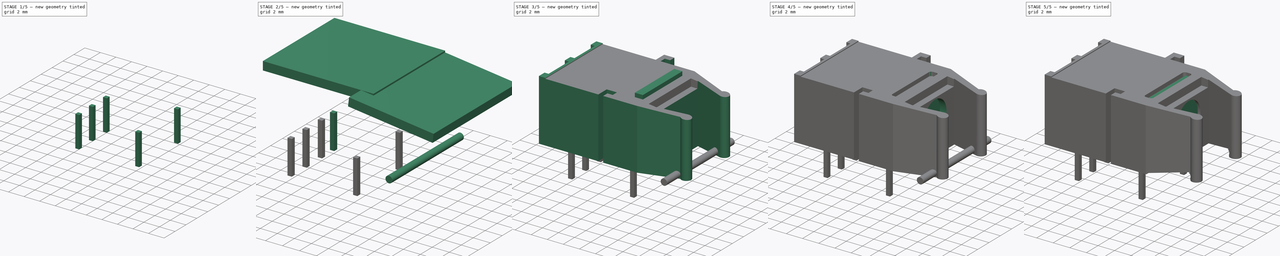
[diagram: build sequence overview — one tinted view per stage of 5, left to right]
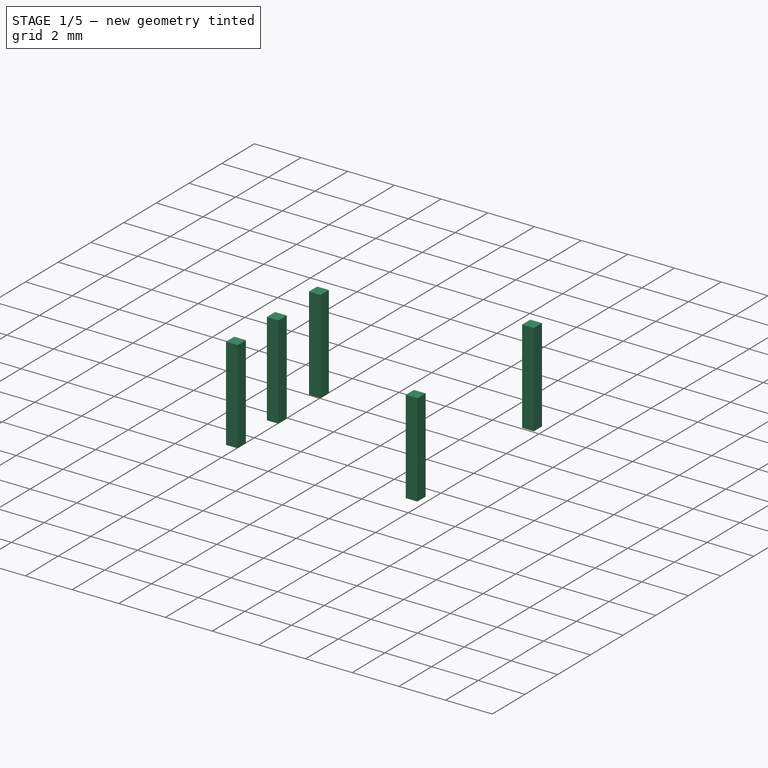
[diagram: stage 1 of 5 — iso view after this stage's code; geometry added in this stage tinted green]
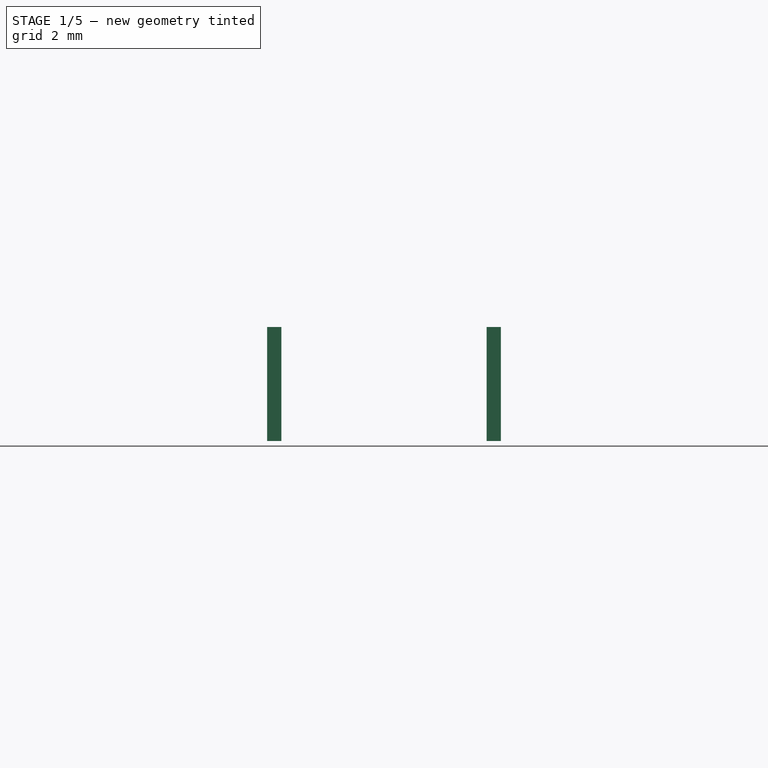
[diagram: stage 1 of 5 — front view after this stage's code; geometry added in this stage tinted green]
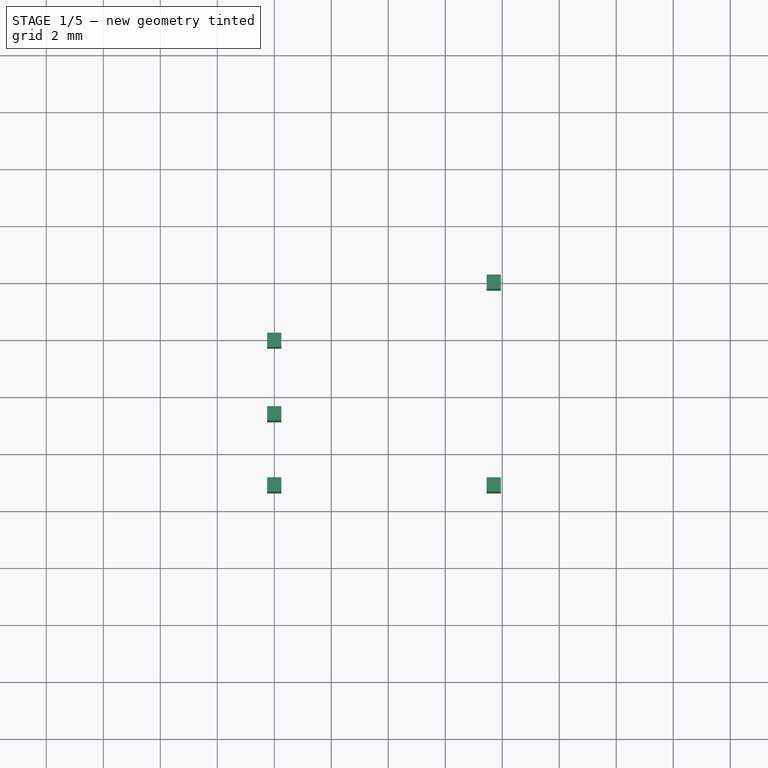
[diagram: stage 1 of 5 — top view after this stage's code; geometry added in this stage tinted green]
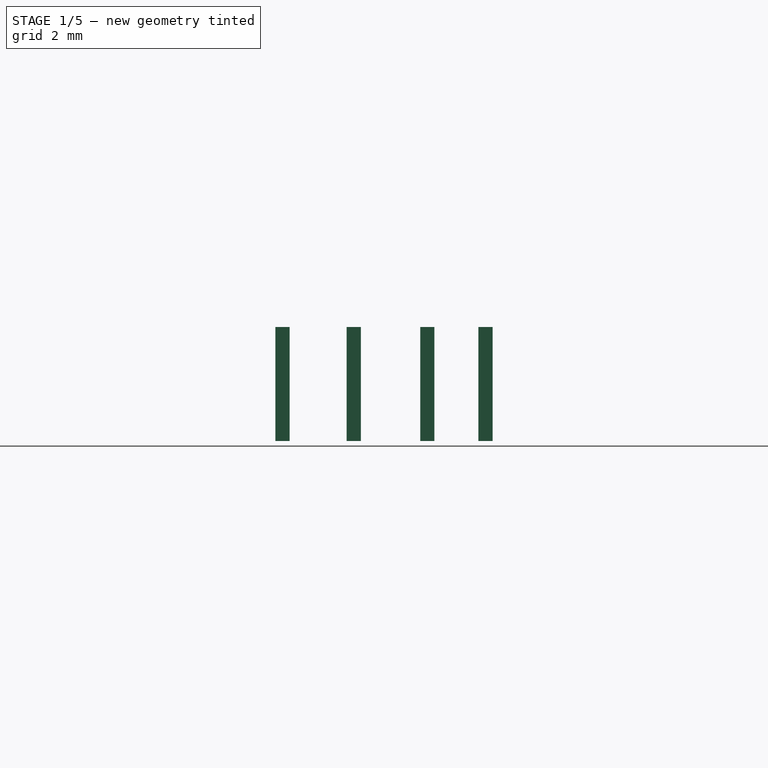
[diagram: stage 1 of 5 — right view after this stage's code; geometry added in this stage tinted green]
FCSTD DOCUMENT  (FreeCAD 0.17R11223 (Git))
Label: Broadcom_AFBR-16xxZ_Horizontal_11
License: All rights reserved
LicenseURL: http://en.wikipedia.org/wiki/All_rights_reserved
objects: Part::Box×11, Part::Cut×7, Part::Cylinder×4, Part::Fillet×2, Sketcher::SketchObject×1, PartDesign::Pad×1, PartDesign::Body×1
note: 28 computed .brp shape members not serialized (recipe doc carries the construction recipe); baked Part::Feature solids carry a one-line shape summary decoded from their .brp

FEATURE [Part::Box] Box006  label="Kub006"
  AttacherType = Attacher::AttachEngine3D
  Height = 4
  Length = 0.5
  Placement = pos=(-0.25,-2.29,-3.8) rot=(0,0,1;0rad)
  Width = 0.5
FEATURE [Part::Box] Box007  label="Kub007"
  AttacherType = Attacher::AttachEngine3D
  Height = 4
  Length = 0.5
  Placement = pos=(-0.25,-4.87,-3.8) rot=(0,0,1;0rad)
  Width = 0.5
FEATURE [Part::Box] Box008  label="Kub008"
  AttacherType = Attacher::AttachEngine3D
  Height = 4
  Length = 0.5
  Placement = pos=(-0.25,-7.37,-3.8) rot=(0,0,1;0rad)
  Width = 0.5
FEATURE [Part::Box] Box009  label="Kub009"
  AttacherType = Attacher::AttachEngine3D
  Height = 4
  Length = 0.5
  Placement = pos=(7.45,-0.25,-3.8) rot=(0,0,1;0rad)
  Width = 0.5
FEATURE [Part::Box] Box010  label="Kub010"
  AttacherType = Attacher::AttachEngine3D
  Height = 4
  Length = 0.5
  Placement = pos=(7.45,-7.37,-3.8) rot=(0,0,1;0rad)
  Width = 0.5
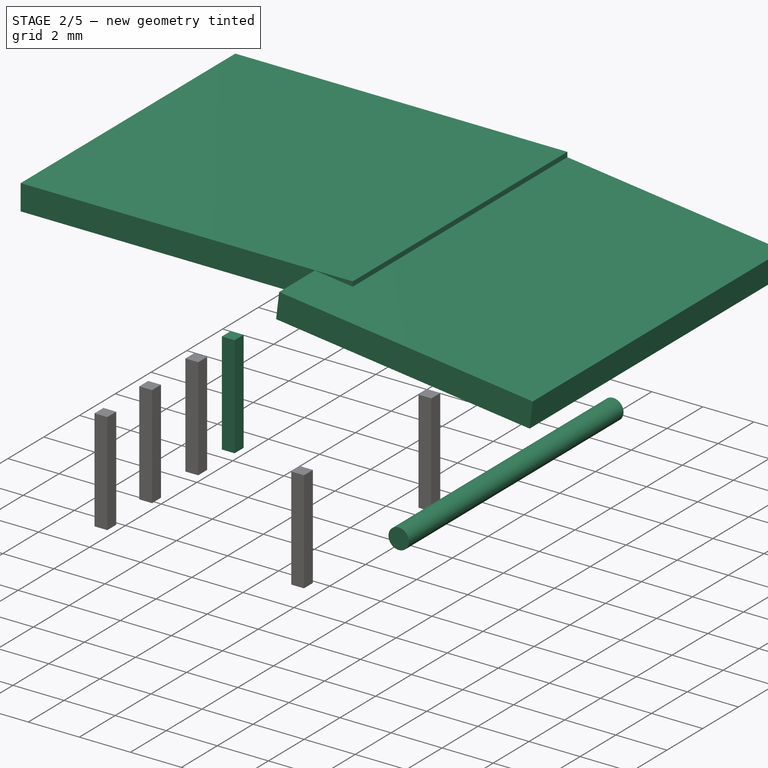
[diagram: stage 2 of 5 — iso view after this stage's code; geometry added in this stage tinted green]
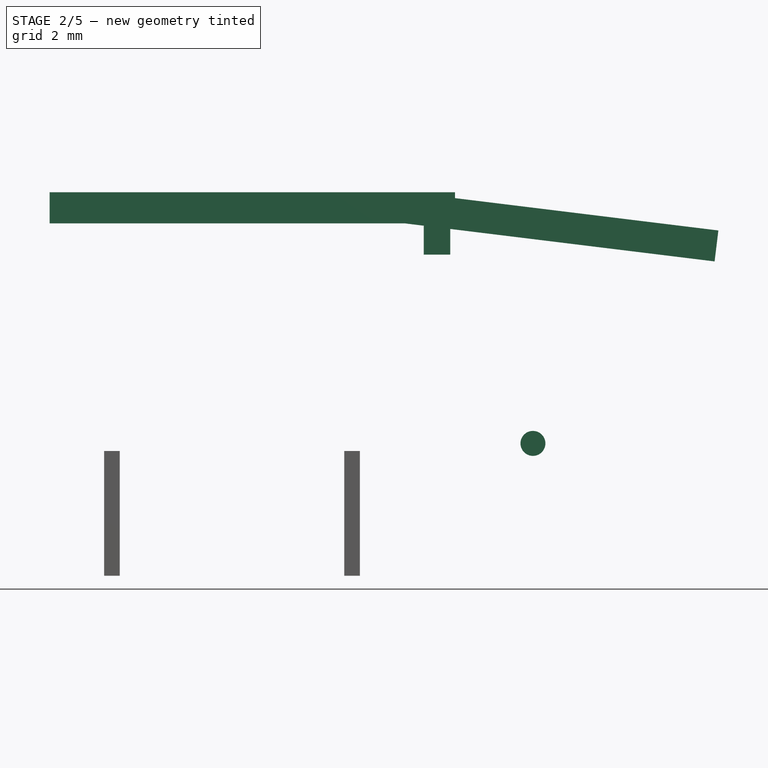
[diagram: stage 2 of 5 — front view after this stage's code; geometry added in this stage tinted green]
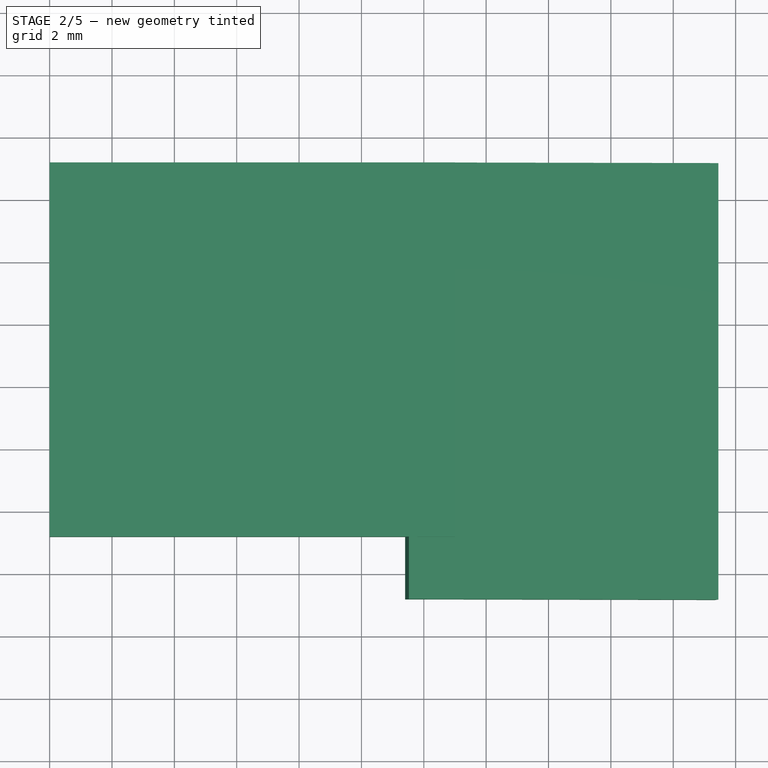
[diagram: stage 2 of 5 — top view after this stage's code; geometry added in this stage tinted green]
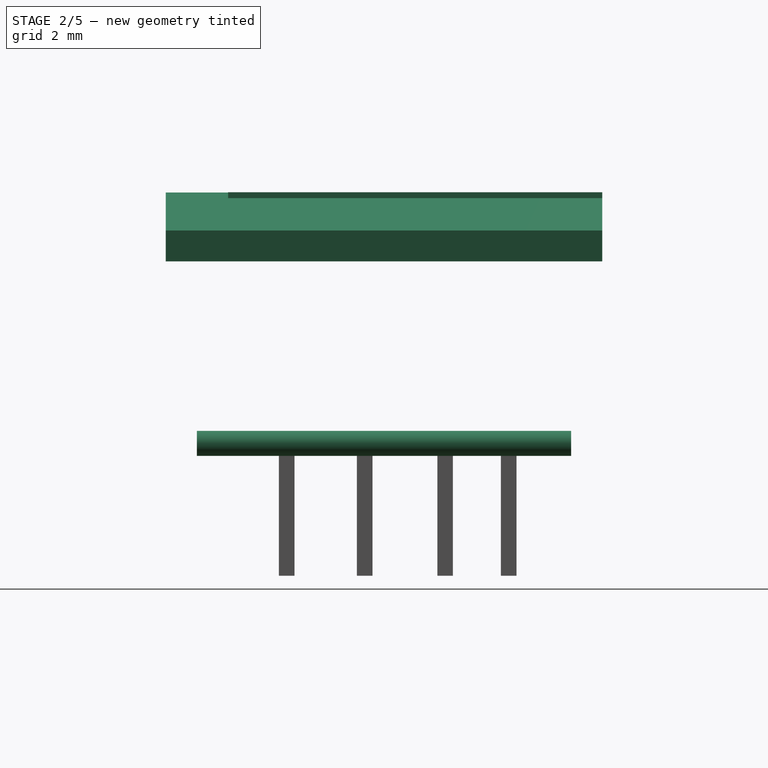
[diagram: stage 2 of 5 — right view after this stage's code; geometry added in this stage tinted green]
FEATURE [PartDesign::Body] Body
  Group = -> [Sketch,Pad]
  Origin = -> BodyOrigin
  Tip = -> Pad
FEATURE [Part::Box] Box  label="Kub"
  AttacherType = Attacher::AttachEngine3D
  Height = 1
  Length = 13
  Placement = pos=(-2,-9,7.5) rot=(0,0,1;0rad)
  Width = 12
FEATURE [Part::Box] Box001  label="Kub001"
  AttacherType = Attacher::AttachEngine3D
  Height = 1
  Length = 10
  Placement = pos=(9.4,-11,7.5) rot=(0,1,0;0.122173rad)
  Width = 14
FEATURE [Part::Box] Box002  label="Kub002"
  AttacherType = Attacher::AttachEngine3D
  Height = 1
  Length = 0.85
  Placement = pos=(10,-7.7,6.5) rot=(0,0,1;0rad)
  Width = 7.5
FEATURE [Part::Cylinder] Cylinder003
  Angle = 360
  AttacherType = Attacher::AttachEngine3D
  Height = 12
  Placement = pos=(13.5,2,0.445) rot=(1,0,0;1.5708rad)
  Radius = 0.4
FEATURE [Part::Box] Box005  label="Kub005"
  AttacherType = Attacher::AttachEngine3D
  Height = 4
  Length = 0.5
  Placement = pos=(-0.25,-0.25,-3.8) rot=(0,0,1;0rad)
  Width = 0.5
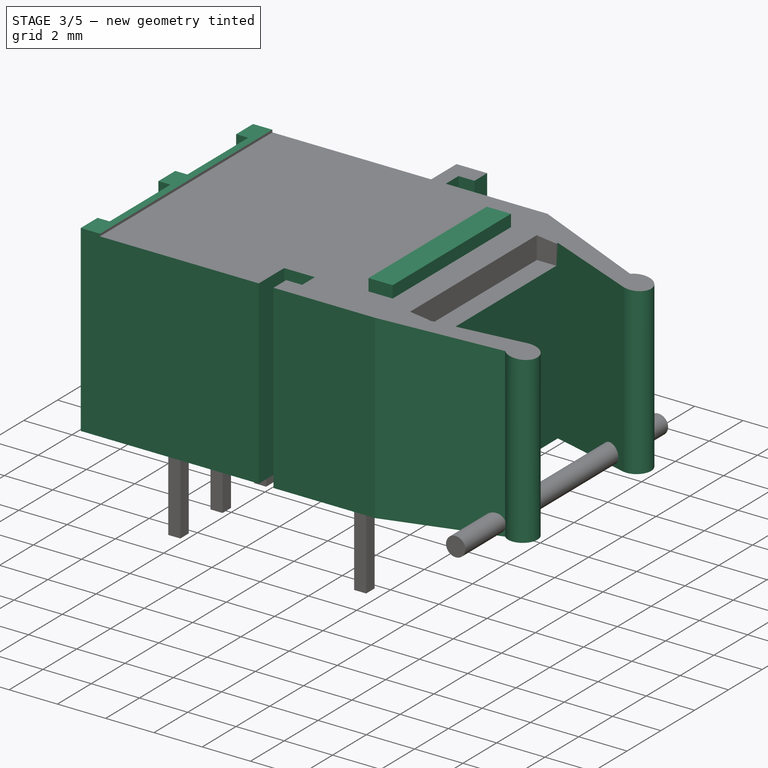
[diagram: stage 3 of 5 — iso view after this stage's code; geometry added in this stage tinted green]
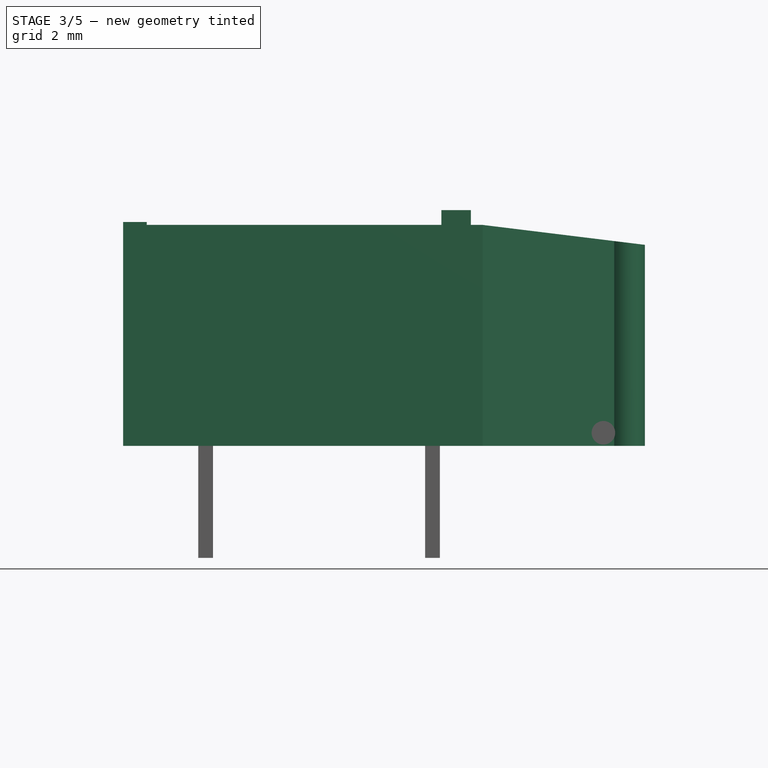
[diagram: stage 3 of 5 — front view after this stage's code; geometry added in this stage tinted green]
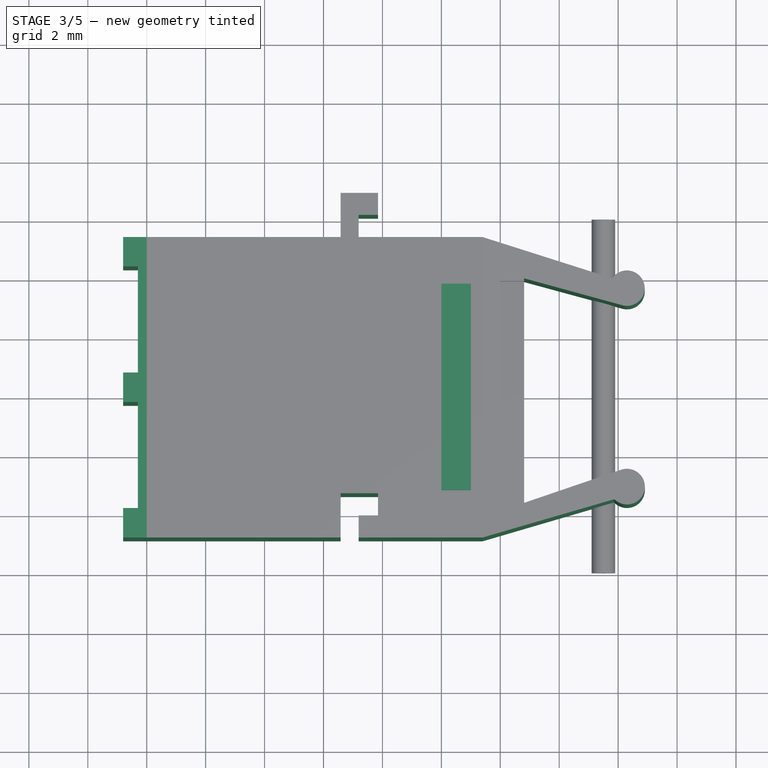
[diagram: stage 3 of 5 — top view after this stage's code; geometry added in this stage tinted green]
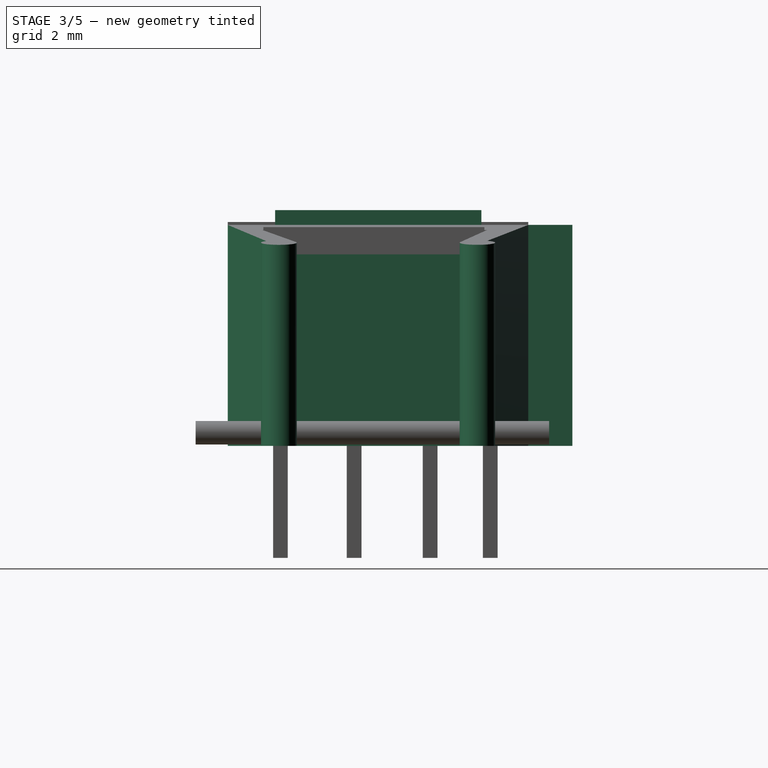
[diagram: stage 3 of 5 — right view after this stage's code; geometry added in this stage tinted green]
FEATURE [Sketcher::SketchObject] Sketch
  MapMode = 5
  Support = -> [XY_Plane]
  sketch-geometry (30):
    g0: LineSegment StartX=-2.8 StartY=1.29 StartZ=0 EndX=-2.8 EndY=0.29 EndZ=0
    g1: LineSegment StartX=-2.8 StartY=0.29 StartZ=0 EndX=-2.3 EndY=0.29 EndZ=0
    g2: LineSegment StartX=-2.3 StartY=0.29 StartZ=0 EndX=-2.3 EndY=-3.31 EndZ=0
    g3: LineSegment StartX=-2.3 StartY=-3.31 StartZ=0 EndX=-2.8 EndY=-3.31 EndZ=0
    g4: LineSegment StartX=-2.8 StartY=-3.31 StartZ=0 EndX=-2.8 EndY=-4.31 EndZ=0
    g5: LineSegment StartX=-2.8 StartY=-4.31 StartZ=0 EndX=-2.3 EndY=-4.31 EndZ=0
    g6: LineSegment StartX=-2.3 StartY=-4.31 StartZ=0 EndX=-2.3 EndY=-7.91 EndZ=0
    g7: LineSegment StartX=-2.3 StartY=-7.91 StartZ=0 EndX=-2.8 EndY=-7.91 EndZ=0
    g8: LineSegment StartX=-2.8 StartY=-7.91 StartZ=0 EndX=-2.8 EndY=-8.91 EndZ=0
    g9: LineSegment StartX=-2.8 StartY=-8.91 StartZ=0 EndX=4.58 EndY=-8.91 EndZ=0
    g10: LineSegment StartX=4.58 StartY=-8.91 StartZ=0 EndX=4.58 EndY=-7.41 EndZ=0
    g11: LineSegment StartX=4.58 StartY=-7.41 StartZ=0 EndX=5.85 EndY=-7.41 EndZ=0
    g12: LineSegment StartX=5.85 StartY=-7.41 StartZ=0 EndX=5.85 EndY=-8.16 EndZ=0
    g13: LineSegment StartX=5.85 StartY=-8.16 StartZ=0 EndX=5.19 EndY=-8.16 EndZ=0
    g14: LineSegment StartX=5.19 StartY=-8.16 StartZ=0 EndX=5.19 EndY=-8.91 EndZ=0
    g15: LineSegment StartX=5.19 StartY=-8.91 StartZ=0 EndX=9.4 EndY=-8.91 EndZ=0
    g16: LineSegment StartX=9.4 StartY=-8.91 StartZ=0 EndX=13.87 EndY=-7.6 EndZ=0
    g17: LineSegment StartX=14.1 StartY=-6.6 StartZ=0 EndX=10.81 EndY=-7.73 EndZ=0
    g18: ArcOfCircle CenterX=14.3 CenterY=-7.17245 CenterZ=0 NormalX=0 NormalY=0 NormalZ=1 Radius=0.606382 StartAngle=3.92413 EndAngle=8.1901
    g19: LineSegment StartX=10.81 StartY=-7.73 StartZ=0 EndX=10.81 EndY=-0.11 EndZ=0
    g20: LineSegment StartX=10.81 StartY=-0.11 StartZ=0 EndX=14.16 EndY=-1.02 EndZ=0
    g21: ArcOfCircle CenterX=14.3 CenterY=-0.434783 CenterZ=0 NormalX=0 NormalY=0 NormalZ=1 Radius=0.60173 StartAngle=4.47757 EndAngle=8.83477
    g22: LineSegment StartX=13.8 StartY=-0.1 StartZ=0 EndX=9.4 EndY=1.29 EndZ=0
    g23: LineSegment StartX=9.4 StartY=1.29 StartZ=0 EndX=5.19 EndY=1.29 EndZ=0
    g24: LineSegment StartX=5.19 StartY=1.29 StartZ=0 EndX=5.19 EndY=2.04 EndZ=0
    g25: LineSegment StartX=5.19 StartY=2.04 StartZ=0 EndX=5.85 EndY=2.04 EndZ=0
    g26: LineSegment StartX=5.85 StartY=2.04 StartZ=0 EndX=5.85 EndY=2.79 EndZ=0
    g27: LineSegment StartX=5.85 StartY=2.79 StartZ=0 EndX=4.58 EndY=2.79 EndZ=0
    g28: LineSegment StartX=4.58 StartY=2.79 StartZ=0 EndX=4.58 EndY=1.29 EndZ=0
    g29: LineSegment StartX=4.58 StartY=1.29 StartZ=0 EndX=-2.8 EndY=1.29 EndZ=0
  constraints (96):
    c: Vertical(g0)
    c: Coincident(g0,g1)
    c: Horizontal(g1)
    c: Coincident(g1,g2)
    c: Vertical(g2)
    c: Coincident(g2,g3)
    c: Horizontal(g3)
    c: Coincident(g3,g4)
    c: Vertical(g4)
    c: Coincident(g4,g5)
    c: Horizontal(g5)
    c: Coincident(g5,g6)
    c: Vertical(g6)
    c: Coincident(g6,g7)
    c: Horizontal(g7)
    c: Coincident(g7,g8)
    c: Vertical(g8)
    c: Coincident(g8,g9)
    c: Horizontal(g9)
    c: Coincident(g9,g10)
    c: Vertical(g10)
    c: Coincident(g10,g11)
    c: Horizontal(g11)
    c: Coincident(g11,g12)
    c: Vertical(g12)
    c: Coincident(g12,g13)
    c: Horizontal(g13)
    c: Vertical(g14)
    c: Coincident(g14,g15)
    c: Horizontal(g15)
    c: Coincident(g15,g16)
    c: Coincident(g18,g16)
    c: Coincident(g18,g17)
    c: Vertical(g19)
    c: Coincident(g21,g20)
    c: Coincident(g22,g23)
    c: Horizontal(g23)
    c: Coincident(g23,g24)
    c: Vertical(g24)
    c: Coincident(g24,g25)
    c: Horizontal(g25)
    c: Coincident(g25,g26)
    c: Vertical(g26)
    c: Coincident(g26,g27)
    c: Horizontal(g27)
    c: Coincident(g27,g28)
    c: Vertical(g28)
    c: Coincident(g28,g29)
    c: Coincident(g29,g0)
    c: DistanceY(g0,g28) = 0
    c: DistanceY(g0,g0) = 1
    c: DistanceY(g4,g4) = 1
    c: DistanceY(g6,g6) = 3.6
    c: DistanceY(g8,g8) = 1
    c: DistanceX(g1,g1) = 0.5
    c: DistanceX(g3,g3) = 0.5
    c: DistanceX(g5,g5) = 0.5
    c: DistanceX(g7,g7) = 0.5
    c: DistanceX(g9,g9) = 7.38
    c: DistanceY(g10,g10) = 1.5
    c: DistanceX(g11,g11) = 1.27
    c: DistanceY(g12,g12) = 0.75
    c: DistanceX(g13,g13) = 0.66
    c: DistanceX(g14,g13) = 0
    c: DistanceY(g14,g13) = 0
    c: DistanceY(g14,g14) = 0.75
    c: DistanceX(g6,g-1) = 2.3
    c: DistanceY(g8,g-1) = 8.91
    c: DistanceY(g2,g1) = 3.6
    c: DistanceX(g-1,g17) = 10.81
    c: DistanceY(g17,g-1) = 7.73
    c: DistanceX(g19,g17) = 0
    c: DistanceY(g17,g19) = 0
    c: DistanceX(g-1,g16) = 13.87
    c: DistanceY(g16,g-1) = 7.6
    c: DistanceX(g-1,g17) = 14.1
    c: DistanceY(g17,g-1) = 6.6
    c: DistanceX(g-1,g18) = 14.3
    c: DistanceX(g19,g20) = 0
    c: DistanceY(g20,g-1) = 1.02
    c: DistanceX(g-1,g22) = 9.4
    c: DistanceX(g-1,g15) = 9.4
    c: DistanceY(g19,g20) = 0
    c: DistanceY(g19,g19) = 7.62
    c: DistanceX(g-1,g20) = 14.16
    c: DistanceX(g-1,g21) = 14.3
    c: DistanceX(g21,g22) = 0
    c: DistanceY(g21,g22) = 0
    c: DistanceX(g-1,g21) = 13.8
    c: DistanceY(g-1,g21) = -0.1
    c: DistanceY(g-1,g22) = 1.29
    c: DistanceX(g23,g23) = 4.21
    c: DistanceY(g24,g24) = 0.75
    c: DistanceX(g25,g25) = 0.66
    c: DistanceY(g26,g26) = 0.75
    c: DistanceX(g27,g27) = 1.27
FEATURE [PartDesign::Pad] Pad
  Length = 7.6
  Length2 = 100
  Profile = -> Sketch
  Type = 0
FEATURE [Part::Cut] Cut
  Base = -> Pad
  Tool = -> Box
FEATURE [Part::Cut] Cut001
  Base = -> Cut
  Tool = -> Box001
FEATURE [Part::Box] Box003  label="Kub003"
  AttacherType = Attacher::AttachEngine3D
  Height = 1
  Length = 1
  Placement = pos=(8,-7.3,7) rot=(0,0,1;0rad)
  Width = 7
FEATURE [Part::Cut] Cut002
  Base = -> Cut001
  Tool = -> Box002
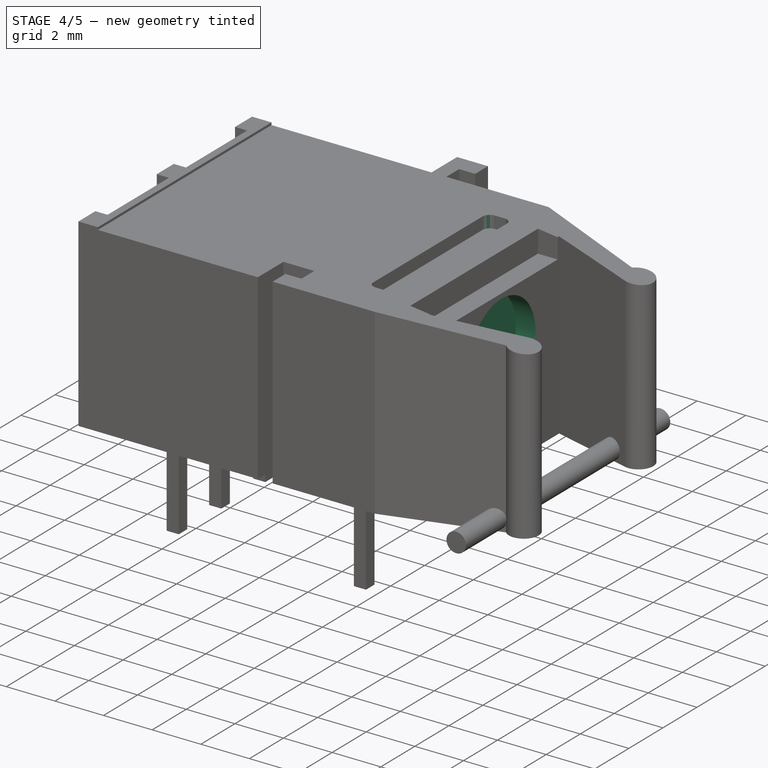
[diagram: stage 4 of 5 — iso view after this stage's code; geometry added in this stage tinted green]
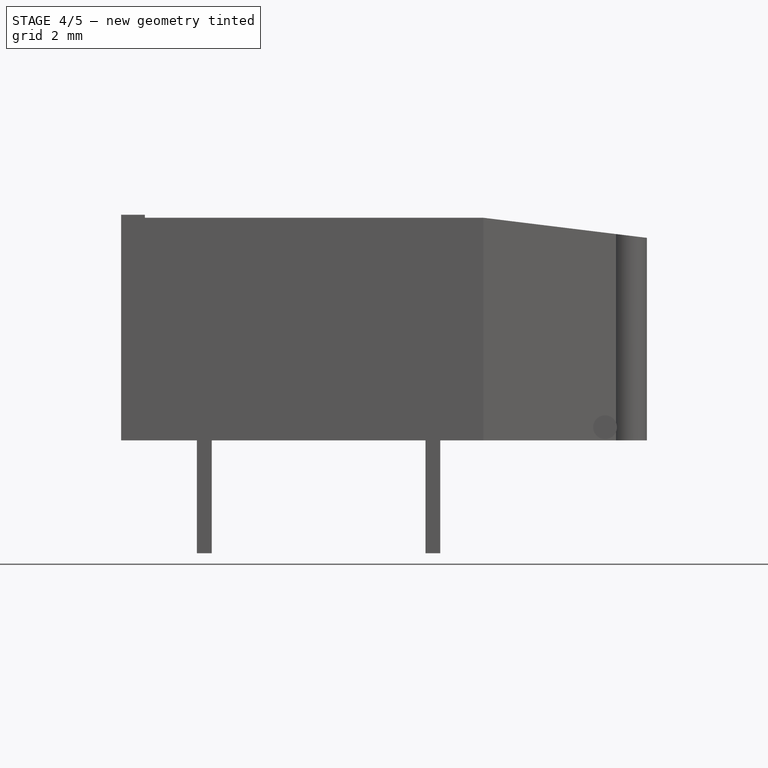
[diagram: stage 4 of 5 — front view after this stage's code; geometry added in this stage tinted green]
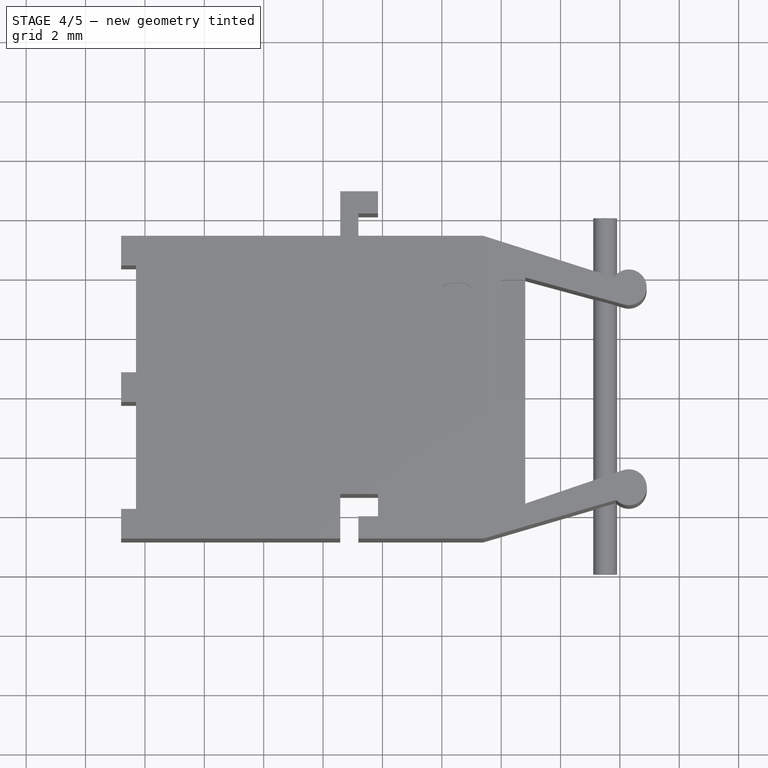
[diagram: stage 4 of 5 — top view after this stage's code; geometry added in this stage tinted green]
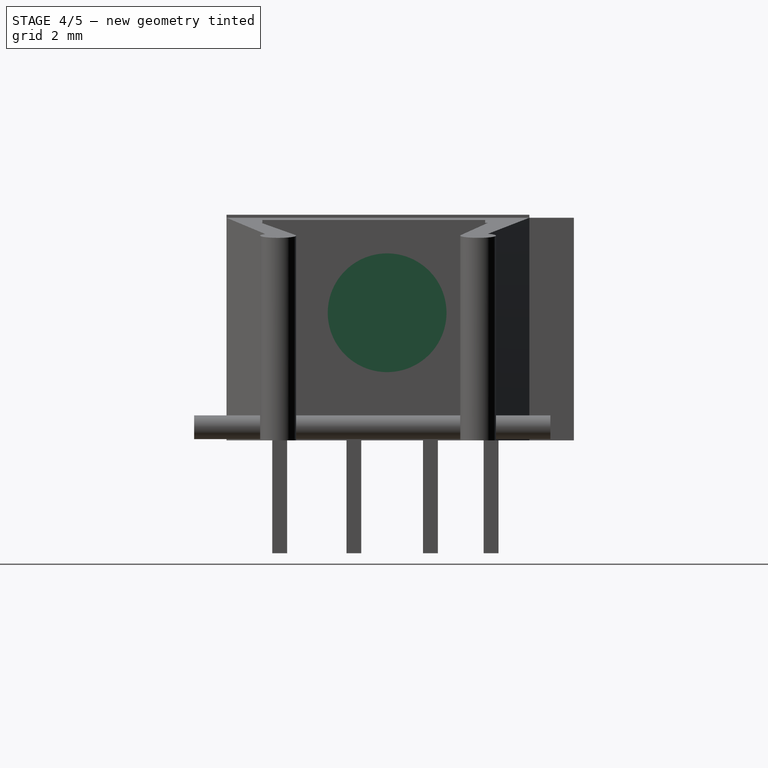
[diagram: stage 4 of 5 — right view after this stage's code; geometry added in this stage tinted green]
FEATURE [Part::Cylinder] Cylinder
  Angle = 360
  AttacherType = Attacher::AttachEngine3D
  Height = 1
  Placement = pos=(10,-3.5,4.3) rot=(0,1,0;1.5708rad)
  Radius = 2
FEATURE [Part::Cut] Cut003
  Base = -> Cut002
  Tool = -> Box003
FEATURE [Part::Cut] Cut004
  Base = -> Cut003
  Tool = -> Cylinder
FEATURE [Part::Fillet] Fillet
  Base = -> Cut004
  Edges = 2 edges r=0.3: [Edge113,Edge115]
FEATURE [Part::Fillet] Fillet001
  Base = -> Fillet
  Edges = 2 edges r=0.3: [Edge24,Edge28]
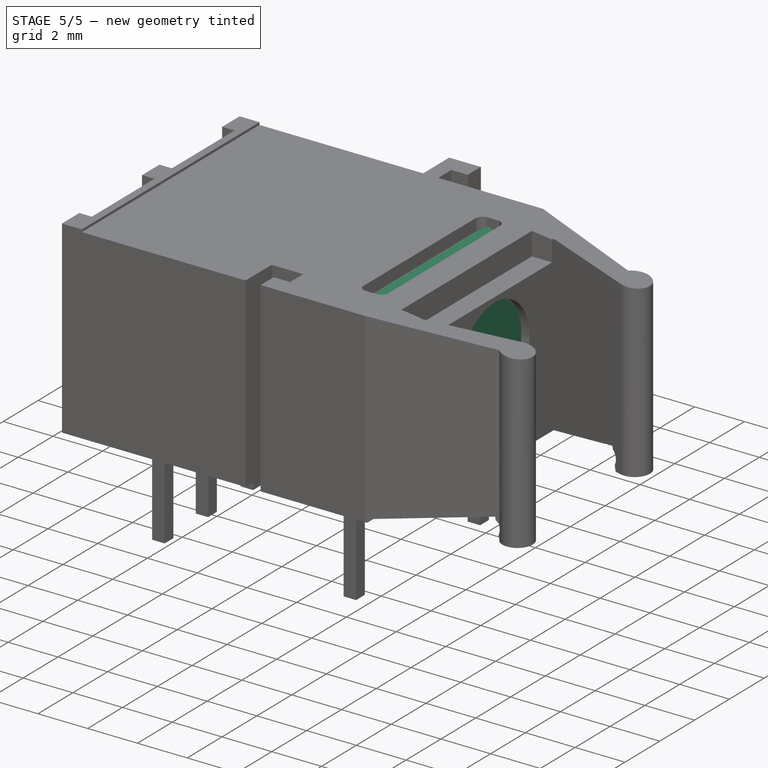
[diagram: stage 5 of 5 — iso view after this stage's code; geometry added in this stage tinted green]
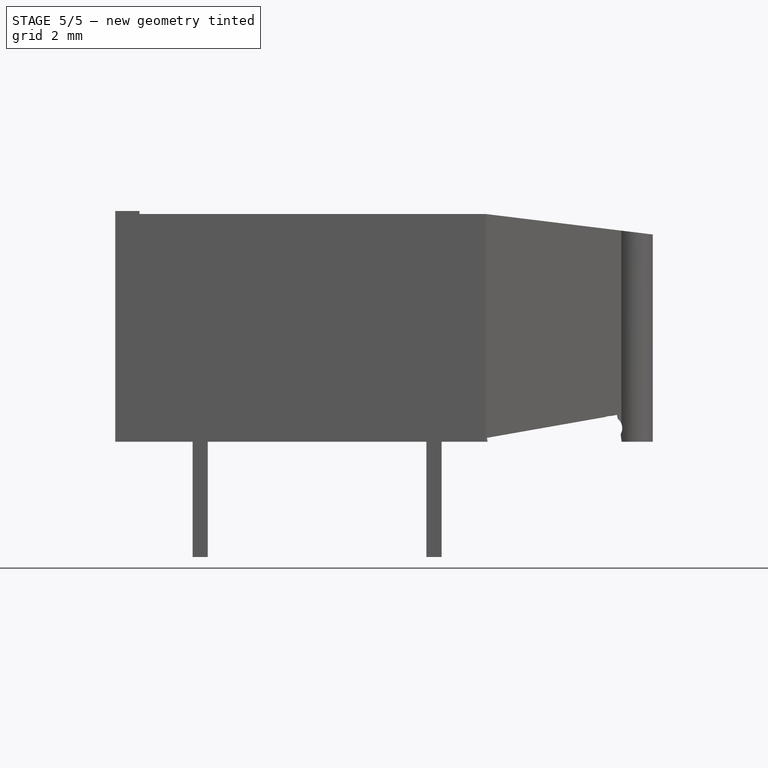
[diagram: stage 5 of 5 — front view after this stage's code; geometry added in this stage tinted green]
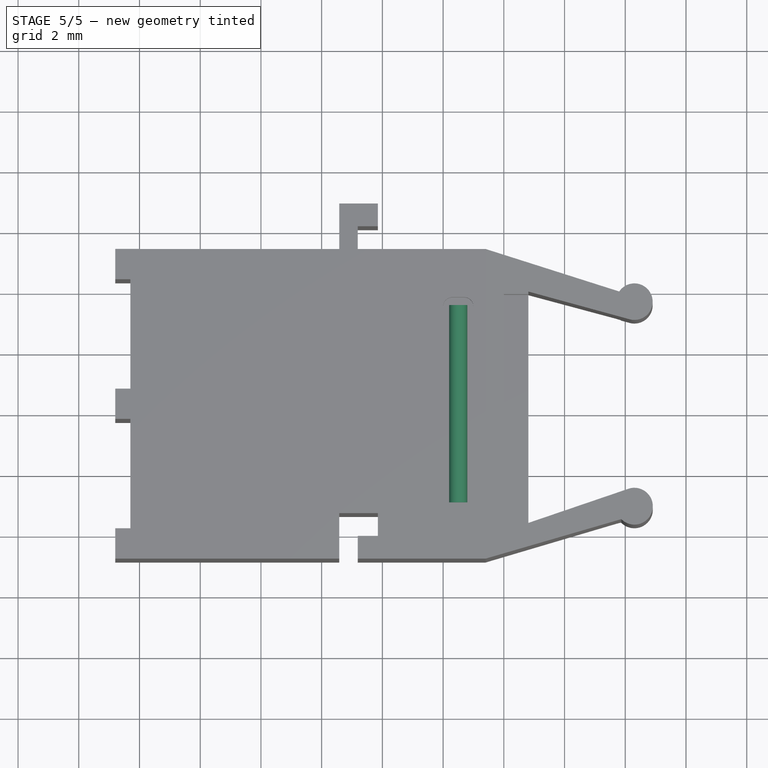
[diagram: stage 5 of 5 — top view after this stage's code; geometry added in this stage tinted green]
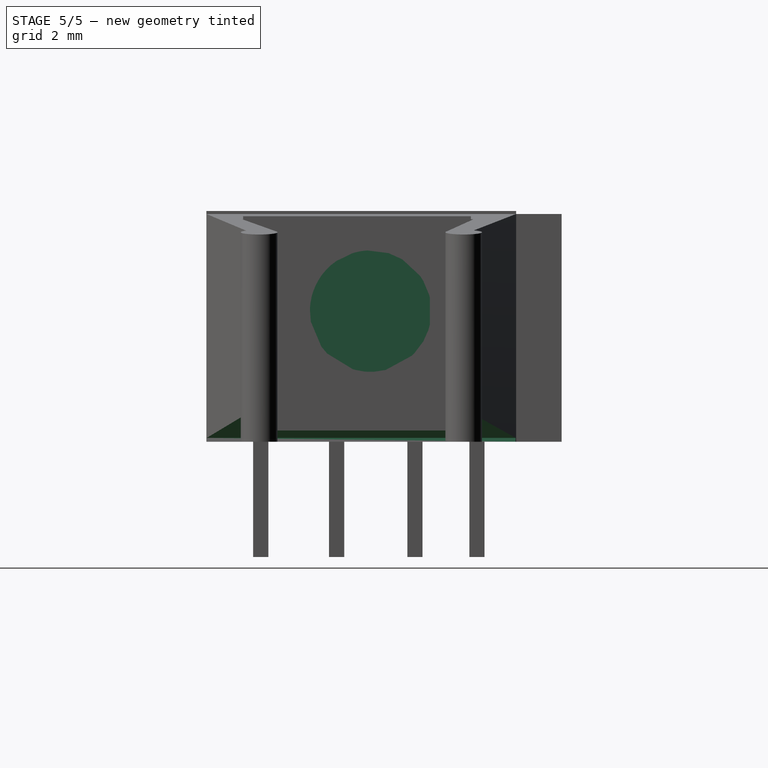
[diagram: stage 5 of 5 — right view after this stage's code; geometry added in this stage tinted green]
FEATURE [Part::Cylinder] Cylinder001
  Angle = 360
  AttacherType = Attacher::AttachEngine3D
  Height = 1
  Placement = pos=(9.5,-3.5,4.3) rot=(0,1,0;1.5708rad)
  Radius = 2
FEATURE [Part::Cylinder] Cylinder002
  Angle = 360
  AttacherType = Attacher::AttachEngine3D
  Height = 6.5
  Placement = pos=(8.5,-0.55,7) rot=(1,0,0;1.5708rad)
  Radius = 0.3
FEATURE [Part::Box] Box004  label="Kub004"
  AttacherType = Attacher::AttachEngine3D
  Height = 0.9
  Length = 4.35
  Placement = pos=(9.6,-11,-0.76) rot=(0,-1,0;0.174533rad)
  Width = 15
FEATURE [Part::Cut] Cut005
  Base = -> Fillet001
  Tool = -> Cylinder003
FEATURE [Part::Cut] Cut006
  Base = -> Cut005
  Tool = -> Box004
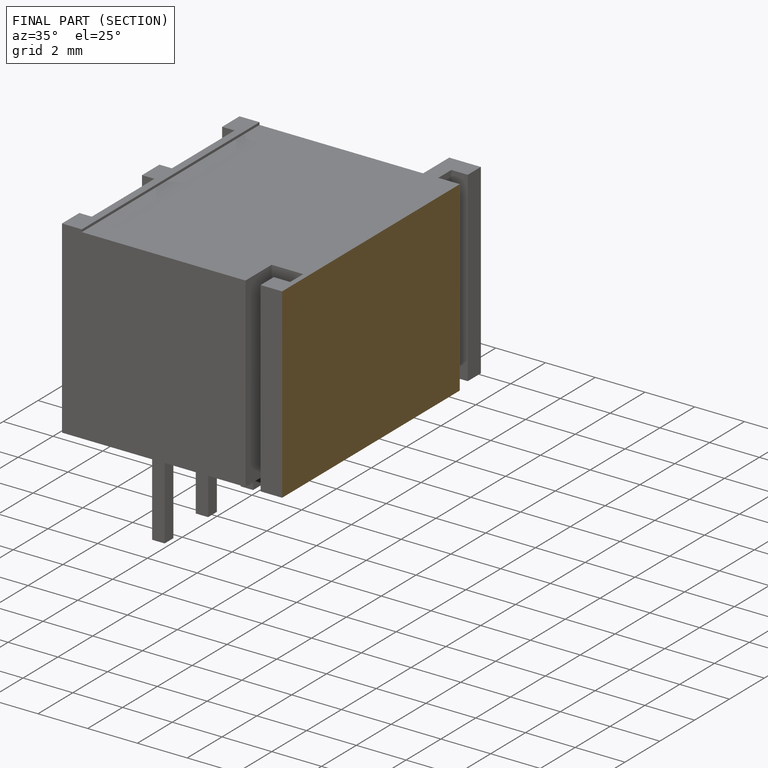
[diagram: finished part — half-section view (interior)]
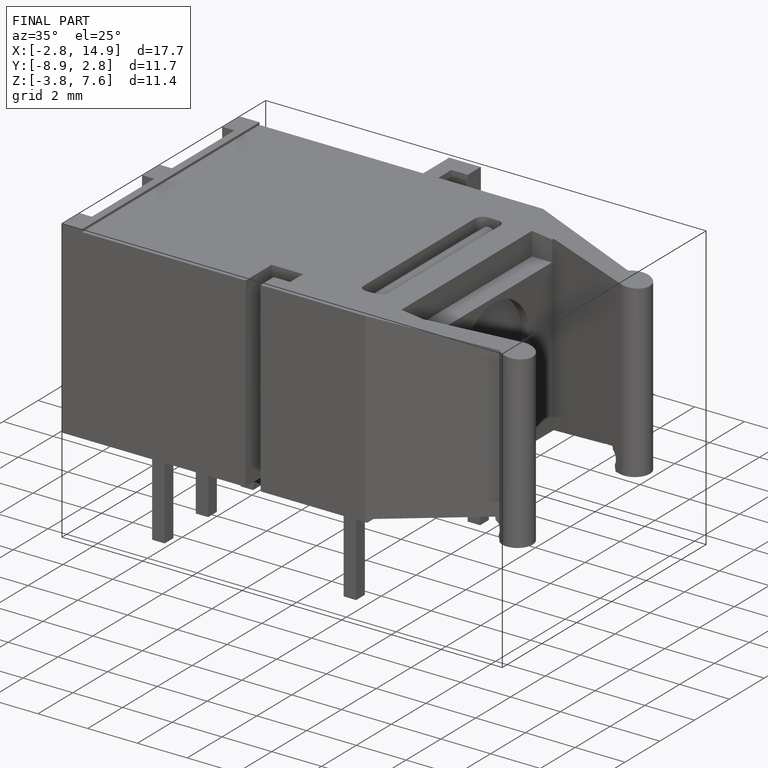
[diagram: finished part — iso view with bounding-box wireframe]
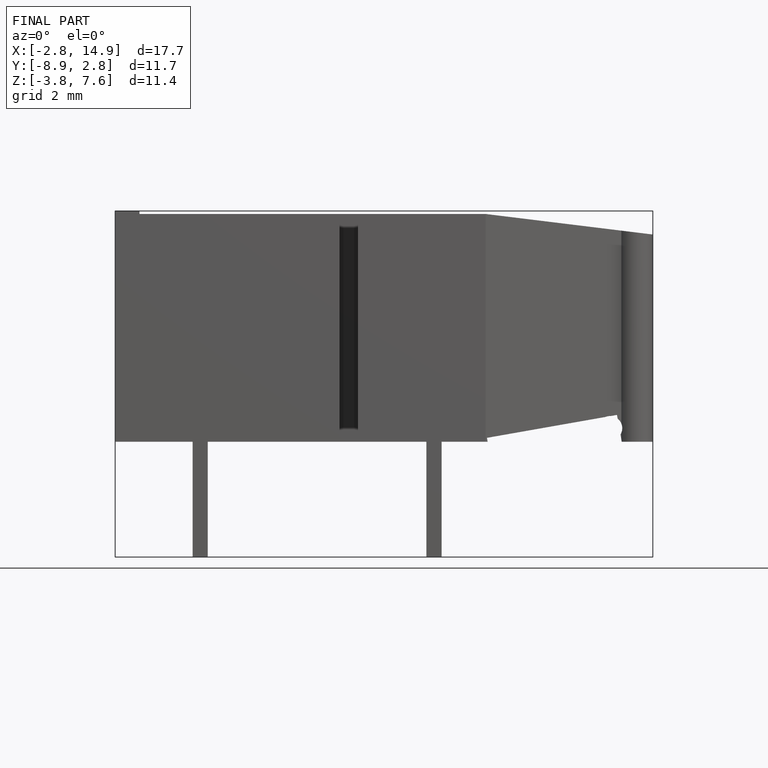
[diagram: finished part — front view with bounding-box wireframe]
